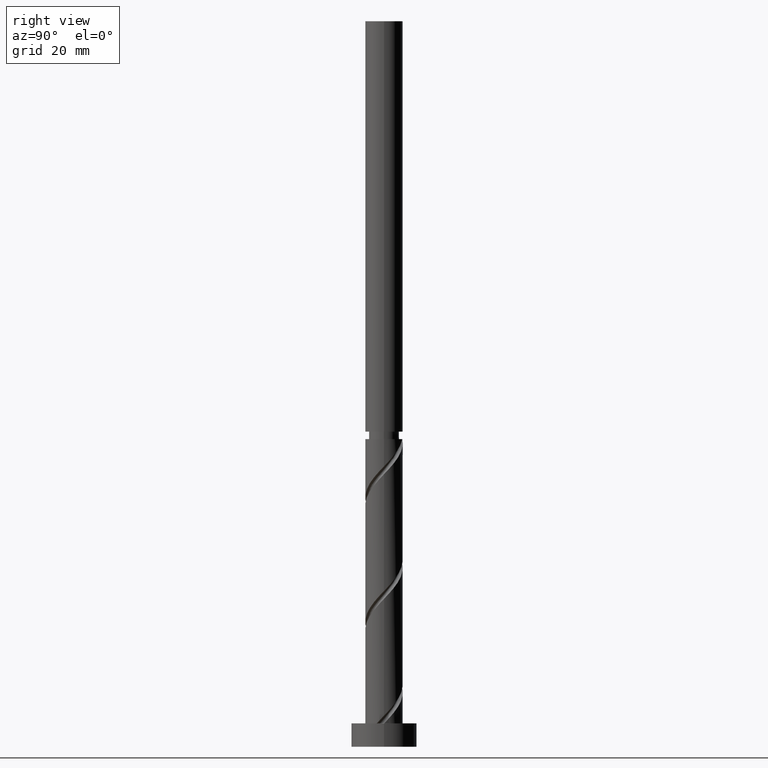
[diagram: clean part render]
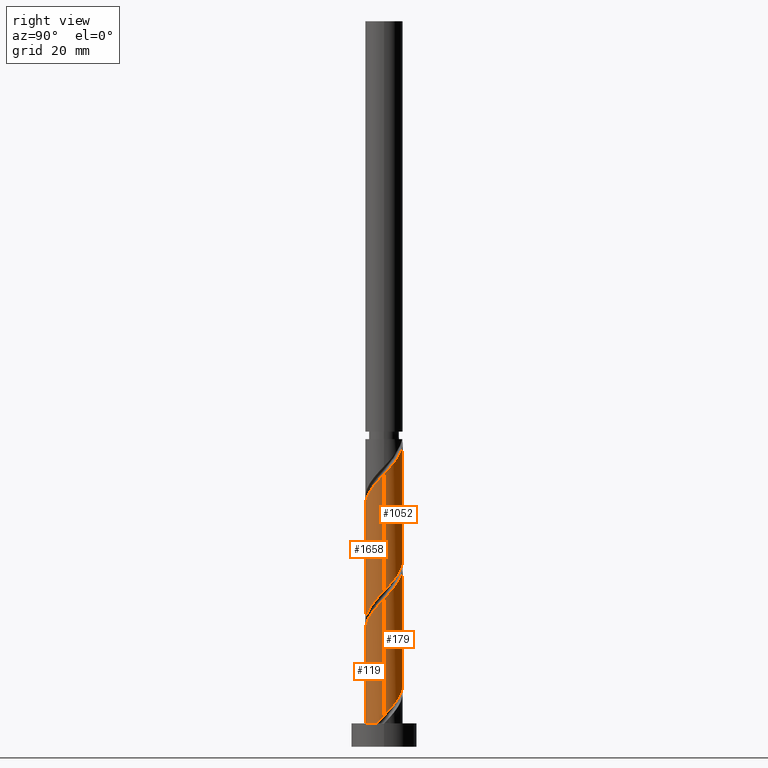
[diagram: same view with one multi-face feature highlighted, each face labeled with its STEP entity id]
A machine part, right view. The highlighted faces form ONE feature: a constant-radius fillet chain: 4 tangent blend faces with common blend radius 4 mm. The faces share edges in the B-rep.
Their STEP definitions:
[1] entity #119 (Cylinder):
#90 =( BOUNDED_CURVE ( )  B_SPLINE_CURVE ( 2, ( #858, #840, #1892, #1317, #1740, #1470, #988 ),
 .UNSPECIFIED., .F., .T. ) 
 B_SPLINE_CURVE_WITH_KNOTS ( ( 3, 2, 2, 3 ),
 ( 0.8045252162417513286, 0.8068181818181817677, 0.8181818181818182323, 0.8202021677089751384 ),
 .UNSPECIFIED. ) 
 CURVE ( )  GEOMETRIC_REPRESENTATION_ITEM ( )  RATIONAL_B_SPLINE_CURVE ( ( 0.9061101570135462469, 0.9072237824201283551, 0.9090909090909058410, 0.8998376744372084124, 0.9090909090909058410, 0.9074457694842660294, 0.9063856111142694072 ) ) 
 REPRESENTATION_ITEM ( '' )  );
#99 = CARTESIAN_POINT ( 'NONE',  ( 2.376675911072817726, -3.268358422650722517, 27.63858067554273390 ) ) ;
#108 = CARTESIAN_POINT ( 'NONE',  ( 4.000000000000007994, -0.4581157095404920221, 31.15165109175539015 ) ) ;
#119 = ADVANCED_FACE ( 'NONE', ( #1918 ), #272, .T. ) ;
#136 = DIRECTION ( 'NONE',  ( -0.000000000000000000, -0.000000000000000000, -1.000000000000000000 ) ) ;
#140 = ORIENTED_EDGE ( 'NONE', *, *, #814, .F. ) ;
#160 = ORIENTED_EDGE ( 'NONE', *, *, #1886, .T. ) ;
#166 = DIRECTION ( 'NONE',  ( 1.000000000000000000, 0.000000000000000000, 0.000000000000000000 ) ) ;
#188 = CIRCLE ( 'NONE', #1745, 4.000000000000000000 ) ;
#250 = VERTEX_POINT ( 'NONE', #431 ) ;
#262 = EDGE_CURVE ( 'NONE', #1035, #501, #1072, .T. ) ;
#272 = CYLINDRICAL_SURFACE ( 'NONE', #1304, 4.000000000000000000 ) ;
#279 = CARTESIAN_POINT ( 'NONE',  ( -4.000000000000000000, 0.000000000000000000, 5.000000000000000000 ) ) ;
#293 = VERTEX_POINT ( 'NONE', #279 ) ;
#383 = CARTESIAN_POINT ( 'NONE',  ( 3.483800894132680348, -1.965485011400591731, 29.45676249372453981 ) ) ;
#414 = CARTESIAN_POINT ( 'NONE',  ( -3.235091246491829331, -2.352484777181775399, 20.97191400887606605 ) ) ;
#431 = CARTESIAN_POINT ( 'NONE',  ( -4.000000000000006217, -1.675163918791613077E-15, 18.30427771139335036 ) ) ;
#461 = EDGE_LOOP ( 'NONE', ( #1787, #1620, #160, #884, #140 ) ) ;
#488 = CARTESIAN_POINT ( 'NONE',  ( -3.766818871216639941, -1.345762085751509352, 19.75979279675485145 ) ) ;
#501 = VERTEX_POINT ( 'NONE', #1701 ) ;
#511 = CARTESIAN_POINT ( 'NONE',  ( -4.000000000000006217, -1.675163918791613077E-15, 18.30427771139335036 ) ) ;
#561 = CARTESIAN_POINT ( 'NONE',  ( 3.896423597087605550, -0.9043689247530186659, 30.66888370584575441 ) ) ;
#594 = VERTEX_POINT ( 'NONE', #1147 ) ;
#685 = CARTESIAN_POINT ( 'NONE',  ( -2.441275768804713309, -3.168623142730451203, 22.18403522099726644 ) ) ;
#697 = CARTESIAN_POINT ( 'NONE',  ( -0.9136687552802140733, -3.936491403624608587, 24.00221703917909366 ) ) ;
#728 = CARTESIAN_POINT ( 'NONE',  ( -0.3406448590276071609, -3.985468740313754754, 24.60827764523968142 ) ) ;
#735 = DIRECTION ( 'NONE',  ( -1.000000000000000000, 0.000000000000000000, 0.000000000000000000 ) ) ;
#737 = LINE ( 'NONE', #1349, #1933 ) ;
#814 = EDGE_CURVE ( 'NONE', #501, #594, #90, .T. ) ;
#828 = CARTESIAN_POINT ( 'NONE',  ( -3.993381233129886354, -0.2300137536889523826, 18.54767158463362975 ) ) ;
#840 = CARTESIAN_POINT ( 'NONE',  ( 4.000000000000001776, -0.1151021060952916869, 6.547755331943575285 ) ) ;
#849 = CARTESIAN_POINT ( 'NONE',  ( 1.359600862145591949, -3.805553922997112259, 26.42645946342152641 ) ) ;
#856 = CARTESIAN_POINT ( 'NONE',  ( 3.766394975944549195, -1.464590062224031763, 30.06282309978515244 ) ) ;
#858 = CARTESIAN_POINT ( 'NONE',  ( 4.000000000000001776, -3.514852865321712256E-15, 6.669853336661794252 ) ) ;
#869 = CARTESIAN_POINT ( 'NONE',  ( 0.7959899496852955725, -3.920000000000006146, 25.82039885736091023 ) ) ;
#884 = ORIENTED_EDGE ( 'NONE', *, *, #1107, .T. ) ;
#935 = CARTESIAN_POINT ( 'NONE',  ( 0.000000000000000000, 0.000000000000000000, 5.000000000000000000 ) ) ;
#976 = CARTESIAN_POINT ( 'NONE',  ( -4.000000000000007105, -0.1151021060952900771, 18.42637571611156844 ) ) ;
#988 = CARTESIAN_POINT ( 'NONE',  ( 3.693800098902596307, -1.534874857878381293, 5.000000000000006217 ) ) ;
#1021 = CARTESIAN_POINT ( 'NONE',  ( -1.985696539029939478, -3.519625607940461087, 22.79009582705787551 ) ) ;
#1035 = VERTEX_POINT ( 'NONE', #1819 ) ;
#1072 = LINE ( 'NONE', #1390, #1143 ) ;
#1107 = EDGE_CURVE ( 'NONE', #293, #594, #188, .T. ) ;
#1124 = DIRECTION ( 'NONE',  ( 0.000000000000000000, 0.000000000000000000, 1.000000000000000000 ) ) ;
#1143 = VECTOR ( 'NONE', #1957, 1000.000000000000000 ) ;
#1147 = CARTESIAN_POINT ( 'NONE',  ( 3.693800098902596307, -1.534874857878381071, 5.000000000000006217 ) ) ;
#1153 = CARTESIAN_POINT ( 'NONE',  ( 2.788941361696815502, -2.867369191613937218, 28.24464128160333232 ) ) ;
#1175 = CARTESIAN_POINT ( 'NONE',  ( 0.2323790372249998071, -4.034446077002902697, 25.21433825130030115 ) ) ;
#1304 = AXIS2_PLACEMENT_3D ( 'NONE', #1775, #1906, #735 ) ;
#1306 = CARTESIAN_POINT ( 'NONE',  ( 4.000000000000006217, 1.420897966832171702E-15, 31.63761104472669672 ) ) ;
#1315 = CARTESIAN_POINT ( 'NONE',  ( 1.868138386609203838, -3.536956172823916944, 27.03252006948211772 ) ) ;
#1317 = CARTESIAN_POINT ( 'NONE',  ( 3.960310248029102365, -0.8041752946599102225, 5.820398857360908451 ) ) ;
#1349 = CARTESIAN_POINT ( 'NONE',  ( -4.000000000000000000, 0.000000000000000000, 155.2000000000000171 ) ) ;
#1390 = CARTESIAN_POINT ( 'NONE',  ( 4.000000000000000000, 4.898587196589412829E-16, 155.2000000000000171 ) ) ;
#1470 = CARTESIAN_POINT ( 'NONE',  ( 3.732706313038952395, -1.441243916640965406, 5.107489677353354907 ) ) ;
#1479 = CARTESIAN_POINT ( 'NONE',  ( 3.201206812320813277, -2.466379960577151476, 28.85070188766393429 ) ) ;
#1596 = CARTESIAN_POINT ( 'NONE',  ( -2.896854998579489138, -2.817620677520443095, 21.57797461493666802 ) ) ;
#1620 = ORIENTED_EDGE ( 'NONE', *, *, #1685, .F. ) ;
#1623 = CARTESIAN_POINT ( 'NONE',  ( -1.449682647155076776, -3.728058505782533505, 23.39615643311848103 ) ) ;
#1685 = EDGE_CURVE ( 'NONE', #250, #1035, #1722, .T. ) ;
#1701 = CARTESIAN_POINT ( 'NONE',  ( 4.000000000000001776, -3.514852865321712256E-15, 6.669853336661794252 ) ) ;
#1722 =( BOUNDED_CURVE ( )  B_SPLINE_CURVE ( 2, ( #511, #976, #828, #1839, #488, #1738, #414, #1596, #685, #1021, #1623, #697, #728, #1175, #869, #849, #1315, #99, #1153, #1479, #383, #856, #561, #108, #1306 ),
 .UNSPECIFIED., .F., .T. ) 
 B_SPLINE_CURVE_WITH_KNOTS ( ( 3, 2, 2, 2, 2, 2, 2, 2, 2, 2, 2, 2, 3 ),
 ( 0.3045252162417513286, 0.3068181818181817677, 0.3181818181818182323, 0.3295454545454545858, 0.3409090909090909394, 0.3522727272727272929, 0.3636363636363636465, 0.3750000000000000000, 0.3863636363636363535, 0.3977272727272727071, 0.4090909090909090606, 0.4204545454545454142, 0.4295252162417513286 ),
 .UNSPECIFIED. ) 
 CURVE ( )  GEOMETRIC_REPRESENTATION_ITEM ( )  RATIONAL_B_SPLINE_CURVE ( ( 0.9061101570135523531, 0.9072237824201345724, 0.9090909090909120582, 0.8998376744372144076, 0.9090909090909120582, 0.8998376744372144076, 0.9090909090909120582, 0.8998376744372144076, 0.9090909090909120582, 0.8998376744372144076, 0.9090909090909120582, 0.8998376744372144076, 0.9090909090909120582, 0.8998376744372144076, 0.9090909090909120582, 0.8998376744372144076, 0.9090909090909120582, 0.8998376744372144076, 0.9090909090909120582, 0.8998376744372144076, 0.9090909090909120582, 0.8998376744372144076, 0.9090909090909120582, 0.9017048011079917824, 0.9061101570135523531 ) ) 
 REPRESENTATION_ITEM ( '' )  );
#1738 = CARTESIAN_POINT ( 'NONE',  ( -3.573327494404171301, -1.887348876843109258, 20.36585340281544987 ) ) ;
#1740 = CARTESIAN_POINT ( 'NONE',  ( 3.766818871216633280, -1.345762085751509129, 5.214338251300299376 ) ) ;
#1745 = AXIS2_PLACEMENT_3D ( 'NONE', #935, #1124, #166 ) ;
#1775 = CARTESIAN_POINT ( 'NONE',  ( 0.000000000000000000, 0.000000000000000000, 155.2000000000000171 ) ) ;
#1787 = ORIENTED_EDGE ( 'NONE', *, *, #262, .F. ) ;
#1819 = CARTESIAN_POINT ( 'NONE',  ( 4.000000000000006217, 1.420897966832171702E-15, 31.63761104472669672 ) ) ;
#1839 = CARTESIAN_POINT ( 'NONE',  ( -3.960310248029109470, -0.8041752946599100005, 19.15373219069423882 ) ) ;
#1886 = EDGE_CURVE ( 'NONE', #250, #293, #737, .T. ) ;
#1892 = CARTESIAN_POINT ( 'NONE',  ( 3.993381233129881913, -0.2300137536889537704, 6.426459463421513085 ) ) ;
#1906 = DIRECTION ( 'NONE',  ( -0.000000000000000000, -0.000000000000000000, -1.000000000000000000 ) ) ;
#1918 = FACE_OUTER_BOUND ( 'NONE', #461, .T. ) ;
#1933 = VECTOR ( 'NONE', #136, 1000.000000000000000 ) ;
#1957 = DIRECTION ( 'NONE',  ( -0.000000000000000000, -0.000000000000000000, -1.000000000000000000 ) ) ;
[2] entity #179 (Cylinder):
#35 = CARTESIAN_POINT ( 'NONE',  ( -2.376675911072817726, 3.268358422650723849, 40.97191400887606250 ) ) ;
#41 = CARTESIAN_POINT ( 'NONE',  ( -1.985696539029936147, 3.519625607940455758, 15.51736855433060747 ) ) ;
#43 = CARTESIAN_POINT ( 'NONE',  ( 0.3406448590276074939, 3.985468740313754754, 37.94161097857302423 ) ) ;
#50 = CARTESIAN_POINT ( 'NONE',  ( 3.483800894132676351, 1.965485011400589066, 8.850701887663939615 ) ) ;
#54 = CARTESIAN_POINT ( 'NONE',  ( 3.573327494404171301, 1.887348876843108147, 33.69918673614878912 ) ) ;
#59 = CARTESIAN_POINT ( 'NONE',  ( -2.441275768804710644, 3.168623142730447650, 16.12342916039120766 ) ) ;
#72 = CARTESIAN_POINT ( 'NONE',  ( 0.000000000000000000, 0.000000000000000000, 155.2000000000000171 ) ) ;
#84 = DIRECTION ( 'NONE',  ( -1.000000000000000000, 0.000000000000000000, 0.000000000000000000 ) ) ;
#178 = CARTESIAN_POINT ( 'NONE',  ( 2.376675911072814618, 3.268358422650717632, 10.66888370584575441 ) ) ;
#179 = ADVANCED_FACE ( 'NONE', ( #399 ), #1192, .T. ) ;
#180 = CARTESIAN_POINT ( 'NONE',  ( 3.766818871216639941, 1.345762085751508685, 33.09312613008818715 ) ) ;
#182 = ORIENTED_EDGE ( 'NONE', *, *, #262, .T. ) ;
#192 = CARTESIAN_POINT ( 'NONE',  ( -0.3406448590276061616, 3.985468740313750313, 13.69918673614878735 ) ) ;
#200 = CARTESIAN_POINT ( 'NONE',  ( 3.766394975944544754, 1.464590062224027767, 8.244641281603328764 ) ) ;
#209 = CARTESIAN_POINT ( 'NONE',  ( 2.788941361696811061, 2.867369191613932333, 10.06282309978515066 ) ) ;
#262 = EDGE_CURVE ( 'NONE', #1035, #501, #1072, .T. ) ;
#321 = CARTESIAN_POINT ( 'NONE',  ( -4.000000000000006217, -1.675163918791613077E-15, 44.97094437806002531 ) ) ;
#336 = CARTESIAN_POINT ( 'NONE',  ( -3.960310248029102365, 0.8041752946599096674, 19.15373219069423527 ) ) ;
#353 = CARTESIAN_POINT ( 'NONE',  ( 1.359600862145592171, 3.805553922997103378, 11.88100491796696900 ) ) ;
#399 = FACE_OUTER_BOUND ( 'NONE', #878, .T. ) ;
#407 = EDGE_CURVE ( 'NONE', #1492, #1365, #1103, .T. ) ;
#424 =( BOUNDED_CURVE ( )  B_SPLINE_CURVE ( 2, ( #1118, #1100, #1549, #336, #649, #1566, #1585, #669, #59, #41, #1246, #1729, #192, #1574, #641, #353, #950, #178, #209, #1856, #50, #200, #1700, #1555, #817 ),
 .UNSPECIFIED., .F., .T. ) 
 B_SPLINE_CURVE_WITH_KNOTS ( ( 3, 2, 2, 2, 2, 2, 2, 2, 2, 2, 2, 2, 3 ),
 ( 0.6795252162417513286, 0.6818181818181817677, 0.6931818181818182323, 0.7045454545454545858, 0.7159090909090909394, 0.7272727272727272929, 0.7386363636363636465, 0.7500000000000000000, 0.7613636363636363535, 0.7727272727272727071, 0.7840909090909090606, 0.7954545454545454142, 0.8045252162417513286 ),
 .UNSPECIFIED. ) 
 CURVE ( )  GEOMETRIC_REPRESENTATION_ITEM ( )  RATIONAL_B_SPLINE_CURVE ( ( 0.9061101570135462469, 0.9072237824201283551, 0.9090909090909058410, 0.8998376744372084124, 0.9090909090909058410, 0.8998376744372084124, 0.9090909090909058410, 0.8998376744372084124, 0.9090909090909058410, 0.8998376744372084124, 0.9090909090909058410, 0.8998376744372084124, 0.9090909090909058410, 0.8998376744372084124, 0.9090909090909058410, 0.8998376744372084124, 0.9090909090909058410, 0.8998376744372084124, 0.9090909090909058410, 0.8998376744372084124, 0.9090909090909058410, 0.8998376744372084124, 0.9090909090909058410, 0.9017048011079857872, 0.9061101570135462469 ) ) 
 REPRESENTATION_ITEM ( '' )  );
#477 = CARTESIAN_POINT ( 'NONE',  ( -0.2323790372249991687, 4.034446077002902697, 38.54767158463365462 ) ) ;
#497 = CARTESIAN_POINT ( 'NONE',  ( -3.896423597087605550, 0.9043689247530188879, 44.00221703917907945 ) ) ;
#501 = VERTEX_POINT ( 'NONE', #1701 ) ;
#514 = CARTESIAN_POINT ( 'NONE',  ( -2.788941361696815502, 2.867369191613937218, 41.57797461493666447 ) ) ;
#530 = VECTOR ( 'NONE', #897, 1000.000000000000000 ) ;
#579 = EDGE_CURVE ( 'NONE', #1035, #1492, #1443, .T. ) ;
#641 = CARTESIAN_POINT ( 'NONE',  ( 0.7959899496852966827, 3.920000000000000817, 12.48706552402757808 ) ) ;
#649 = CARTESIAN_POINT ( 'NONE',  ( -3.766818871216633280, 1.345762085751508463, 18.54767158463363330 ) ) ;
#651 = CARTESIAN_POINT ( 'NONE',  ( -3.201206812320813277, 2.466379960577151476, 42.18403522099727354 ) ) ;
#669 = CARTESIAN_POINT ( 'NONE',  ( -2.896854998579483809, 2.817620677520439987, 16.72948976645181673 ) ) ;
#673 = CARTESIAN_POINT ( 'NONE',  ( 3.235091246491830219, 2.352484777181774511, 34.30524734220937688 ) ) ;
#776 = CARTESIAN_POINT ( 'NONE',  ( -4.000000000000001776, 2.662314085222403279E-15, 20.00318666999513084 ) ) ;
#793 = CARTESIAN_POINT ( 'NONE',  ( 0.9136687552802145174, 3.936491403624608587, 37.33555037251240805 ) ) ;
#803 = CARTESIAN_POINT ( 'NONE',  ( 1.449682647155075443, 3.728058505782533505, 36.72948976645181318 ) ) ;
#817 = CARTESIAN_POINT ( 'NONE',  ( 4.000000000000001776, -3.514852865321712256E-15, 6.669853336661794252 ) ) ;
#821 = CARTESIAN_POINT ( 'NONE',  ( -0.7959899496852951284, 3.920000000000006146, 39.15373219069423527 ) ) ;
#878 = EDGE_LOOP ( 'NONE', ( #1929, #182, #1897, #941 ) ) ;
#897 = DIRECTION ( 'NONE',  ( -0.000000000000000000, -0.000000000000000000, -1.000000000000000000 ) ) ;
#941 = ORIENTED_EDGE ( 'NONE', *, *, #407, .F. ) ;
#945 = CARTESIAN_POINT ( 'NONE',  ( 3.993381233129886354, 0.2300137536889518830, 31.88100491796697611 ) ) ;
#950 = CARTESIAN_POINT ( 'NONE',  ( 1.868138386609203616, 3.536956172823911171, 11.27494431190636526 ) ) ;
#1035 = VERTEX_POINT ( 'NONE', #1819 ) ;
#1072 = LINE ( 'NONE', #1390, #1143 ) ;
#1089 = CARTESIAN_POINT ( 'NONE',  ( -4.000000000000006217, -1.675163918791613077E-15, 44.97094437806002531 ) ) ;
#1090 = CARTESIAN_POINT ( 'NONE',  ( -3.483800894132680348, 1.965485011400591286, 42.79009582705788972 ) ) ;
#1100 = CARTESIAN_POINT ( 'NONE',  ( -4.000000000000001776, 0.1151021060952909236, 19.88108866527691632 ) ) ;
#1103 = LINE ( 'NONE', #1702, #530 ) ;
#1118 = CARTESIAN_POINT ( 'NONE',  ( -4.000000000000001776, 2.662314085222403673E-15, 20.00318666999513084 ) ) ;
#1127 = CARTESIAN_POINT ( 'NONE',  ( -3.766394975944548751, 1.464590062224032430, 43.39615643311849169 ) ) ;
#1143 = VECTOR ( 'NONE', #1957, 1000.000000000000000 ) ;
#1192 = CYLINDRICAL_SURFACE ( 'NONE', #1518, 4.000000000000000000 ) ;
#1246 = CARTESIAN_POINT ( 'NONE',  ( -1.449682647155073445, 3.728058505782529508, 14.91130794827000017 ) ) ;
#1282 = CARTESIAN_POINT ( 'NONE',  ( 1.985696539029938146, 3.519625607940461531, 36.12342916039121832 ) ) ;
#1365 = VERTEX_POINT ( 'NONE', #776 ) ;
#1390 = CARTESIAN_POINT ( 'NONE',  ( 4.000000000000000000, 4.898587196589412829E-16, 155.2000000000000171 ) ) ;
#1414 = CARTESIAN_POINT ( 'NONE',  ( 4.000000000000006217, 1.420897966832171702E-15, 31.63761104472669672 ) ) ;
#1443 =( BOUNDED_CURVE ( )  B_SPLINE_CURVE ( 2, ( #1414, #1840, #945, #1577, #180, #54, #673, #1568, #1832, #1282, #803, #793, #43, #477, #821, #1716, #1866, #35, #514, #651, #1090, #1127, #497, #1691, #321 ),
 .UNSPECIFIED., .F., .T. ) 
 B_SPLINE_CURVE_WITH_KNOTS ( ( 3, 2, 2, 2, 2, 2, 2, 2, 2, 2, 2, 2, 3 ),
 ( 0.4295252162417513286, 0.4318181818181817677, 0.4431818181818182323, 0.4545454545454545858, 0.4659090909090909394, 0.4772727272727272929, 0.4886363636363636465, 0.5000000000000000000, 0.5113636363636363535, 0.5227272727272727071, 0.5340909090909091717, 0.5454545454545454142, 0.5545252162417515507 ),
 .UNSPECIFIED. ) 
 CURVE ( )  GEOMETRIC_REPRESENTATION_ITEM ( )  RATIONAL_B_SPLINE_CURVE ( ( 0.9061101570135523531, 0.9072237824201345724, 0.9090909090909120582, 0.8998376744372144076, 0.9090909090909120582, 0.8998376744372144076, 0.9090909090909120582, 0.8998376744372144076, 0.9090909090909120582, 0.8998376744372144076, 0.9090909090909120582, 0.8998376744372144076, 0.9090909090909120582, 0.8998376744372144076, 0.9090909090909120582, 0.8998376744372144076, 0.9090909090909120582, 0.8998376744372144076, 0.9090909090909120582, 0.8998376744372144076, 0.9090909090909120582, 0.8998376744372144076, 0.9090909090909120582, 0.9017048011079917824, 0.9061101570135525751 ) ) 
 REPRESENTATION_ITEM ( '' )  );
#1453 = DIRECTION ( 'NONE',  ( -0.000000000000000000, -0.000000000000000000, -1.000000000000000000 ) ) ;
#1492 = VERTEX_POINT ( 'NONE', #1089 ) ;
#1518 = AXIS2_PLACEMENT_3D ( 'NONE', #72, #1453, #84 ) ;
#1549 = CARTESIAN_POINT ( 'NONE',  ( -3.993381233129881913, 0.2300137536889531598, 19.75979279675485500 ) ) ;
#1555 = CARTESIAN_POINT ( 'NONE',  ( 4.000000000000002665, 0.4581157095404892465, 7.155813289633101704 ) ) ;
#1566 = CARTESIAN_POINT ( 'NONE',  ( -3.573327494404165527, 1.887348876843107259, 17.94161097857302423 ) ) ;
#1568 = CARTESIAN_POINT ( 'NONE',  ( 2.896854998579490914, 2.817620677520442207, 34.91130794827000017 ) ) ;
#1569 = EDGE_CURVE ( 'NONE', #1365, #501, #424, .T. ) ;
#1574 = CARTESIAN_POINT ( 'NONE',  ( 0.2323790372250001401, 4.034446077002896480, 13.09312613008818005 ) ) ;
#1577 = CARTESIAN_POINT ( 'NONE',  ( 3.960310248029109470, 0.8041752946599093343, 32.48706552402757097 ) ) ;
#1585 = CARTESIAN_POINT ( 'NONE',  ( -3.235091246491824890, 2.352484777181773623, 17.33555037251242226 ) ) ;
#1691 = CARTESIAN_POINT ( 'NONE',  ( -4.000000000000008882, 0.4581157095404854718, 44.48498442508873296 ) ) ;
#1700 = CARTESIAN_POINT ( 'NONE',  ( 3.896423597087600665, 0.9043689247530154462, 7.638580675542724130 ) ) ;
#1701 = CARTESIAN_POINT ( 'NONE',  ( 4.000000000000001776, -3.514852865321712256E-15, 6.669853336661794252 ) ) ;
#1702 = CARTESIAN_POINT ( 'NONE',  ( -4.000000000000000000, 0.000000000000000000, 155.2000000000000171 ) ) ;
#1716 = CARTESIAN_POINT ( 'NONE',  ( -1.359600862145592615, 3.805553922997110927, 39.75979279675484435 ) ) ;
#1729 = CARTESIAN_POINT ( 'NONE',  ( -0.9136687552802122969, 3.936491403624602814, 14.30524734220939642 ) ) ;
#1819 = CARTESIAN_POINT ( 'NONE',  ( 4.000000000000006217, 1.420897966832171702E-15, 31.63761104472669672 ) ) ;
#1832 = CARTESIAN_POINT ( 'NONE',  ( 2.441275768804712865, 3.168623142730452091, 35.51736855433059503 ) ) ;
#1840 = CARTESIAN_POINT ( 'NONE',  ( 4.000000000000007105, 0.1151021060952897024, 31.75970904944491124 ) ) ;
#1856 = CARTESIAN_POINT ( 'NONE',  ( 3.201206812320807948, 2.466379960577147923, 9.456762493724543361 ) ) ;
#1866 = CARTESIAN_POINT ( 'NONE',  ( -1.868138386609204948, 3.536956172823916056, 40.36585340281545342 ) ) ;
#1897 = ORIENTED_EDGE ( 'NONE', *, *, #1569, .F. ) ;
#1929 = ORIENTED_EDGE ( 'NONE', *, *, #579, .F. ) ;
#1957 = DIRECTION ( 'NONE',  ( -0.000000000000000000, -0.000000000000000000, -1.000000000000000000 ) ) ;
[3] entity #1658 (Cylinder):
#33 = DIRECTION ( 'NONE',  ( -0.000000000000000000, -0.000000000000000000, -1.000000000000000000 ) ) ;
#66 = CARTESIAN_POINT ( 'NONE',  ( -2.376675911072814174, -3.268358422650717632, 24.00221703917909011 ) ) ;
#79 =( BOUNDED_CURVE ( )  B_SPLINE_CURVE ( 2, ( #1779, #221, #253, #1336, #1921, #880, #1768, #392, #1891, #551, #1296, #1635, #1912, #575, #997, #1758, #539, #66, #527, #234, #1185, #1880, #1010, #1146, #371 ),
 .UNSPECIFIED., .F., .T. ) 
 B_SPLINE_CURVE_WITH_KNOTS ( ( 3, 2, 2, 2, 2, 2, 2, 2, 2, 2, 2, 2, 3 ),
 ( 0.5545252162417513286, 0.5568181818181817677, 0.5681818181818182323, 0.5795454545454545858, 0.5909090909090909394, 0.6022727272727272929, 0.6136363636363636465, 0.6250000000000000000, 0.6363636363636363535, 0.6477272727272727071, 0.6590909090909090606, 0.6704545454545454142, 0.6795252162417513286 ),
 .UNSPECIFIED. ) 
 CURVE ( )  GEOMETRIC_REPRESENTATION_ITEM ( )  RATIONAL_B_SPLINE_CURVE ( ( 0.9061101570135462469, 0.9072237824201283551, 0.9090909090909058410, 0.8998376744372084124, 0.9090909090909058410, 0.8998376744372084124, 0.9090909090909058410, 0.8998376744372084124, 0.9090909090909058410, 0.8998376744372084124, 0.9090909090909058410, 0.8998376744372084124, 0.9090909090909058410, 0.8998376744372084124, 0.9090909090909058410, 0.8998376744372084124, 0.9090909090909058410, 0.8998376744372084124, 0.9090909090909058410, 0.8998376744372084124, 0.9090909090909058410, 0.8998376744372084124, 0.9090909090909058410, 0.9017048011079857872, 0.9061101570135462469 ) ) 
 REPRESENTATION_ITEM ( '' )  );
#116 = CARTESIAN_POINT ( 'NONE',  ( -4.000000000000006217, -1.675163918791613077E-15, 44.97094437806002531 ) ) ;
#130 = EDGE_LOOP ( 'NONE', ( #1095, #148, #1368, #1816 ) ) ;
#148 = ORIENTED_EDGE ( 'NONE', *, *, #1862, .F. ) ;
#156 = CARTESIAN_POINT ( 'NONE',  ( -3.766818871216639941, -1.345762085751509352, 46.42645946342151575 ) ) ;
#212 = CARTESIAN_POINT ( 'NONE',  ( 4.000000000000006217, 1.420897966832171702E-15, 58.30427771139336812 ) ) ;
#221 = CARTESIAN_POINT ( 'NONE',  ( 4.000000000000001776, -0.1151021060952916869, 33.21442199861024136 ) ) ;
#234 = CARTESIAN_POINT ( 'NONE',  ( -3.201206812320809281, -2.466379960577146591, 22.79009582705787551 ) ) ;
#253 = CARTESIAN_POINT ( 'NONE',  ( 3.993381233129881913, -0.2300137536889537704, 33.09312613008818715 ) ) ;
#275 = CARTESIAN_POINT ( 'NONE',  ( 3.896423597087605550, -0.9043689247530186659, 57.33555037251242226 ) ) ;
#302 = CARTESIAN_POINT ( 'NONE',  ( -3.235091246491829331, -2.352484777181775399, 47.63858067554272679 ) ) ;
#371 = CARTESIAN_POINT ( 'NONE',  ( -4.000000000000001776, 2.662314085222403673E-15, 20.00318666999513084 ) ) ;
#379 = VERTEX_POINT ( 'NONE', #601 ) ;
#392 = CARTESIAN_POINT ( 'NONE',  ( 2.896854998579485141, -2.817620677520438655, 30.06282309978515244 ) ) ;
#407 = EDGE_CURVE ( 'NONE', #1492, #1365, #1103, .T. ) ;
#437 = CARTESIAN_POINT ( 'NONE',  ( -1.449682647155076776, -3.728058505782533505, 50.06282309978513467 ) ) ;
#452 = CARTESIAN_POINT ( 'NONE',  ( 4.000000000000007105, -0.4581157095404907453, 57.81831775842205445 ) ) ;
#463 = CARTESIAN_POINT ( 'NONE',  ( -4.000000000000006217, -0.1151021060952967662, 45.09304238277824339 ) ) ;
#527 = CARTESIAN_POINT ( 'NONE',  ( -2.788941361696812837, -2.867369191613931889, 23.39615643311849169 ) ) ;
#530 = VECTOR ( 'NONE', #897, 1000.000000000000000 ) ;
#539 = CARTESIAN_POINT ( 'NONE',  ( -1.868138386609203172, -3.536956172823911171, 24.60827764523969563 ) ) ;
#551 = CARTESIAN_POINT ( 'NONE',  ( 1.985696539029935925, -3.519625607940455758, 28.85070188766393784 ) ) ;
#575 = CARTESIAN_POINT ( 'NONE',  ( -0.2323790372250011671, -4.034446077002897368, 26.42645946342151930 ) ) ;
#601 = CARTESIAN_POINT ( 'NONE',  ( 4.000000000000001776, -3.514852865321712256E-15, 33.33652000332846654 ) ) ;
#627 = CARTESIAN_POINT ( 'NONE',  ( 1.868138386609203838, -3.536956172823916944, 53.69918673614876781 ) ) ;
#751 = CARTESIAN_POINT ( 'NONE',  ( -2.441275768804713309, -3.168623142730451203, 48.85070188766393784 ) ) ;
#764 = CARTESIAN_POINT ( 'NONE',  ( -1.985696539029939478, -3.519625607940461087, 49.45676249372455402 ) ) ;
#773 = CARTESIAN_POINT ( 'NONE',  ( 0.2323790372249998071, -4.034446077002902697, 51.88100491796699032 ) ) ;
#776 = CARTESIAN_POINT ( 'NONE',  ( -4.000000000000001776, 2.662314085222403279E-15, 20.00318666999513084 ) ) ;
#792 = CARTESIAN_POINT ( 'NONE',  ( 0.000000000000000000, 0.000000000000000000, 155.2000000000000171 ) ) ;
#796 = VERTEX_POINT ( 'NONE', #212 ) ;
#861 = AXIS2_PLACEMENT_3D ( 'NONE', #792, #33, #1279 ) ;
#880 = CARTESIAN_POINT ( 'NONE',  ( 3.573327494404165527, -1.887348876843107037, 31.27494431190635993 ) ) ;
#897 = DIRECTION ( 'NONE',  ( -0.000000000000000000, -0.000000000000000000, -1.000000000000000000 ) ) ;
#904 = CARTESIAN_POINT ( 'NONE',  ( -2.896854998579489138, -2.817620677520443095, 48.24464128160334297 ) ) ;
#924 = CARTESIAN_POINT ( 'NONE',  ( -0.9136687552802140733, -3.936491403624608587, 50.66888370584575796 ) ) ;
#997 = CARTESIAN_POINT ( 'NONE',  ( -0.7959899496852962386, -3.920000000000000817, 25.82039885736091378 ) ) ;
#1010 = CARTESIAN_POINT ( 'NONE',  ( -3.896423597087600665, -0.9043689247530166675, 20.97191400887606250 ) ) ;
#1053 = CARTESIAN_POINT ( 'NONE',  ( -0.3406448590276071609, -3.985468740313754754, 51.27494431190635993 ) ) ;
#1089 = CARTESIAN_POINT ( 'NONE',  ( -4.000000000000006217, -1.675163918791613077E-15, 44.97094437806002531 ) ) ;
#1095 = ORIENTED_EDGE ( 'NONE', *, *, #1376, .F. ) ;
#1103 = LINE ( 'NONE', #1702, #530 ) ;
#1135 = FACE_OUTER_BOUND ( 'NONE', #130, .T. ) ;
#1146 = CARTESIAN_POINT ( 'NONE',  ( -4.000000000000002665, -0.4581157095404906343, 20.48914662296643741 ) ) ;
#1154 = VECTOR ( 'NONE', #1820, 1000.000000000000000 ) ;
#1185 = CARTESIAN_POINT ( 'NONE',  ( -3.483800894132676351, -1.965485011400588178, 22.18403522099726644 ) ) ;
#1227 = CARTESIAN_POINT ( 'NONE',  ( -3.573327494404171301, -1.887348876843109258, 47.03252006948213904 ) ) ;
#1235 = CARTESIAN_POINT ( 'NONE',  ( 2.376675911072817726, -3.268358422650722517, 54.30524734220938399 ) ) ;
#1279 = DIRECTION ( 'NONE',  ( -1.000000000000000000, 0.000000000000000000, 0.000000000000000000 ) ) ;
#1296 = CARTESIAN_POINT ( 'NONE',  ( 1.449682647155073445, -3.728058505782529508, 28.24464128160333942 ) ) ;
#1336 = CARTESIAN_POINT ( 'NONE',  ( 3.960310248029102365, -0.8041752946599102225, 32.48706552402757097 ) ) ;
#1362 = CARTESIAN_POINT ( 'NONE',  ( -3.960310248029109470, -0.8041752946599100005, 45.82039885736089246 ) ) ;
#1365 = VERTEX_POINT ( 'NONE', #776 ) ;
#1368 = ORIENTED_EDGE ( 'NONE', *, *, #407, .T. ) ;
#1369 = CARTESIAN_POINT ( 'NONE',  ( 3.201206812320813277, -2.466379960577151476, 55.51736855433062345 ) ) ;
#1376 = EDGE_CURVE ( 'NONE', #796, #379, #1389, .T. ) ;
#1379 = CARTESIAN_POINT ( 'NONE',  ( 3.483800894132680348, -1.965485011400591731, 56.12342916039119700 ) ) ;
#1387 = CARTESIAN_POINT ( 'NONE',  ( 1.359600862145591949, -3.805553922997112259, 53.09312613008818715 ) ) ;
#1389 = LINE ( 'NONE', #1519, #1154 ) ;
#1424 = CYLINDRICAL_SURFACE ( 'NONE', #861, 4.000000000000000000 ) ;
#1492 = VERTEX_POINT ( 'NONE', #1089 ) ;
#1509 = CARTESIAN_POINT ( 'NONE',  ( 2.788941361696815502, -2.867369191613937218, 54.91130794826999306 ) ) ;
#1519 = CARTESIAN_POINT ( 'NONE',  ( 4.000000000000000000, 4.898587196589412829E-16, 155.2000000000000171 ) ) ;
#1520 =( BOUNDED_CURVE ( )  B_SPLINE_CURVE ( 2, ( #116, #463, #1677, #1362, #156, #1227, #302, #904, #751, #764, #437, #924, #1053, #773, #1942, #1387, #627, #1235, #1509, #1369, #1379, #1828, #275, #452, #1961 ),
 .UNSPECIFIED., .F., .T. ) 
 B_SPLINE_CURVE_WITH_KNOTS ( ( 3, 2, 2, 2, 2, 2, 2, 2, 2, 2, 2, 2, 3 ),
 ( 0.5545252162417515507, 0.5568181818181818787, 0.5681818181818181213, 0.5795454545454545858, 0.5909090909090908283, 0.6022727272727272929, 0.6136363636363636465, 0.6250000000000000000, 0.6363636363636363535, 0.6477272727272727071, 0.6590909090909091717, 0.6704545454545454142, 0.6795252162417514397 ),
 .UNSPECIFIED. ) 
 CURVE ( )  GEOMETRIC_REPRESENTATION_ITEM ( )  RATIONAL_B_SPLINE_CURVE ( ( 0.9061101570135525751, 0.9072237824201346834, 0.9090909090909120582, 0.8998376744372144076, 0.9090909090909120582, 0.8998376744372144076, 0.9090909090909120582, 0.8998376744372144076, 0.9090909090909120582, 0.8998376744372144076, 0.9090909090909120582, 0.8998376744372144076, 0.9090909090909120582, 0.8998376744372144076, 0.9090909090909120582, 0.8998376744372144076, 0.9090909090909120582, 0.8998376744372144076, 0.9090909090909120582, 0.8998376744372144076, 0.9090909090909120582, 0.8998376744372144076, 0.9090909090909120582, 0.9017048011079918934, 0.9061101570135523531 ) ) 
 REPRESENTATION_ITEM ( '' )  );
#1635 = CARTESIAN_POINT ( 'NONE',  ( 0.9136687552802127410, -3.936491403624601926, 27.63858067554272679 ) ) ;
#1658 = ADVANCED_FACE ( 'NONE', ( #1135 ), #1424, .T. ) ;
#1677 = CARTESIAN_POINT ( 'NONE',  ( -3.993381233129886354, -0.2300137536889523826, 45.21433825130028339 ) ) ;
#1702 = CARTESIAN_POINT ( 'NONE',  ( -4.000000000000000000, 0.000000000000000000, 155.2000000000000171 ) ) ;
#1758 = CARTESIAN_POINT ( 'NONE',  ( -1.359600862145591282, -3.805553922997103822, 25.21433825130030471 ) ) ;
#1768 = CARTESIAN_POINT ( 'NONE',  ( 3.235091246491825334, -2.352484777181773179, 30.66888370584576506 ) ) ;
#1779 = CARTESIAN_POINT ( 'NONE',  ( 4.000000000000001776, -3.514852865321712256E-15, 33.33652000332846654 ) ) ;
#1784 = EDGE_CURVE ( 'NONE', #379, #1365, #79, .T. ) ;
#1816 = ORIENTED_EDGE ( 'NONE', *, *, #1784, .F. ) ;
#1820 = DIRECTION ( 'NONE',  ( -0.000000000000000000, -0.000000000000000000, -1.000000000000000000 ) ) ;
#1828 = CARTESIAN_POINT ( 'NONE',  ( 3.766394975944549195, -1.464590062224031763, 56.72948976645181318 ) ) ;
#1862 = EDGE_CURVE ( 'NONE', #1492, #796, #1520, .T. ) ;
#1880 = CARTESIAN_POINT ( 'NONE',  ( -3.766394975944543866, -1.464590062224029543, 21.57797461493666447 ) ) ;
#1891 = CARTESIAN_POINT ( 'NONE',  ( 2.441275768804709312, -3.168623142730448095, 29.45676249372455047 ) ) ;
#1912 = CARTESIAN_POINT ( 'NONE',  ( 0.3406448590276050514, -3.985468740313750313, 27.03252006948211772 ) ) ;
#1921 = CARTESIAN_POINT ( 'NONE',  ( 3.766818871216633280, -1.345762085751509129, 31.88100491796697611 ) ) ;
#1942 = CARTESIAN_POINT ( 'NONE',  ( 0.7959899496852955725, -3.920000000000006146, 52.48706552402758518 ) ) ;
#1961 = CARTESIAN_POINT ( 'NONE',  ( 4.000000000000006217, 1.420897966832171702E-15, 58.30427771139336812 ) ) ;
[4] entity #1052 (Cylinder):
#19 = ORIENTED_EDGE ( 'NONE', *, *, #513, .F. ) ;
#58 = EDGE_CURVE ( 'NONE', #1955, #750, #114, .T. ) ;
#62 = CARTESIAN_POINT ( 'NONE',  ( 4.000000000000001776, -3.514852865321712256E-15, 33.33652000332846654 ) ) ;
#114 = LINE ( 'NONE', #1643, #700 ) ;
#168 = CARTESIAN_POINT ( 'NONE',  ( 4.000000000000006217, 1.420897966832171702E-15, 58.30427771139336812 ) ) ;
#177 = DIRECTION ( 'NONE',  ( -0.000000000000000000, -0.000000000000000000, -1.000000000000000000 ) ) ;
#187 = CARTESIAN_POINT ( 'NONE',  ( 0.9136687552802145174, 3.936491403624608587, 64.00221703917910077 ) ) ;
#194 = CARTESIAN_POINT ( 'NONE',  ( 3.766818871216639941, 1.345762085751508685, 59.75979279675485145 ) ) ;
#203 = CARTESIAN_POINT ( 'NONE',  ( -0.2323790372249991687, 4.034446077002902697, 65.21433825130029049 ) ) ;
#205 = CARTESIAN_POINT ( 'NONE',  ( 3.896423597087600665, 0.9043689247530154462, 34.30524734220939109 ) ) ;
#212 = CARTESIAN_POINT ( 'NONE',  ( 4.000000000000006217, 1.420897966832171702E-15, 58.30427771139336812 ) ) ;
#329 = FACE_OUTER_BOUND ( 'NONE', #655, .T. ) ;
#331 = DIRECTION ( 'NONE',  ( -1.000000000000000000, 0.000000000000000000, 0.000000000000000000 ) ) ;
#347 = CARTESIAN_POINT ( 'NONE',  ( 2.441275768804712865, 3.168623142730452091, 62.18403522099725222 ) ) ;
#349 = CARTESIAN_POINT ( 'NONE',  ( 2.788941361696811061, 2.867369191613932333, 36.72948976645182029 ) ) ;
#357 = CARTESIAN_POINT ( 'NONE',  ( 3.993381233129886354, 0.2300137536889518830, 58.54767158463364041 ) ) ;
#358 = CARTESIAN_POINT ( 'NONE',  ( 1.359600862145592171, 3.805553922997103378, 38.54767158463365462 ) ) ;
#379 = VERTEX_POINT ( 'NONE', #601 ) ;
#382 = EDGE_CURVE ( 'NONE', #750, #379, #1055, .T. ) ;
#388 = ORIENTED_EDGE ( 'NONE', *, *, #382, .F. ) ;
#469 = CARTESIAN_POINT ( 'NONE',  ( -1.985696539029936147, 3.519625607940455758, 42.18403522099728775 ) ) ;
#479 = CARTESIAN_POINT ( 'NONE',  ( -2.896854998579483809, 2.817620677520439987, 43.39615643311848459 ) ) ;
#483 = ORIENTED_EDGE ( 'NONE', *, *, #535, .T. ) ;
#489 = ORIENTED_EDGE ( 'NONE', *, *, #1376, .T. ) ;
#490 = CARTESIAN_POINT ( 'NONE',  ( 1.449682647155075443, 3.728058505782533505, 63.39615643311846327 ) ) ;
#513 = EDGE_CURVE ( 'NONE', #796, #1208, #916, .T. ) ;
#524 = ORIENTED_EDGE ( 'NONE', *, *, #58, .F. ) ;
#535 = EDGE_CURVE ( 'NONE', #1955, #1208, #741, .T. ) ;
#601 = CARTESIAN_POINT ( 'NONE',  ( 4.000000000000001776, -3.514852865321712256E-15, 33.33652000332846654 ) ) ;
#615 = CARTESIAN_POINT ( 'NONE',  ( -3.573327494404165527, 1.887348876843107259, 44.60827764523969563 ) ) ;
#623 = CARTESIAN_POINT ( 'NONE',  ( -3.235091246491824890, 2.352484777181773623, 44.00221703917907945 ) ) ;
#630 = CARTESIAN_POINT ( 'NONE',  ( 2.896854998579490914, 2.817620677520442207, 61.57797461493667868 ) ) ;
#632 = CARTESIAN_POINT ( 'NONE',  ( -4.000000000000001776, 2.662314085222403279E-15, 46.66985333666180935 ) ) ;
#646 = AXIS2_PLACEMENT_3D ( 'NONE', #1849, #661, #331 ) ;
#653 = CARTESIAN_POINT ( 'NONE',  ( 3.201206812320807948, 2.466379960577147923, 36.12342916039121832 ) ) ;
#655 = EDGE_LOOP ( 'NONE', ( #19, #489, #388, #524, #483 ) ) ;
#661 = DIRECTION ( 'NONE',  ( -0.000000000000000000, -0.000000000000000000, -1.000000000000000000 ) ) ;
#700 = VECTOR ( 'NONE', #1038, 1000.000000000000000 ) ;
#741 = CIRCLE ( 'NONE', #646, 4.000000000000003553 ) ;
#742 = AXIS2_PLACEMENT_3D ( 'NONE', #1548, #177, #810 ) ;
#750 = VERTEX_POINT ( 'NONE', #1447 ) ;
#796 = VERTEX_POINT ( 'NONE', #212 ) ;
#810 = DIRECTION ( 'NONE',  ( -1.000000000000000000, 0.000000000000000000, 0.000000000000000000 ) ) ;
#823 = CARTESIAN_POINT ( 'NONE',  ( 4.000000000000002665, 0.4581157095404892465, 33.82247995629976600 ) ) ;
#886 = CARTESIAN_POINT ( 'NONE',  ( 0.7959899496852966827, 3.920000000000000817, 39.15373219069424948 ) ) ;
#910 = CARTESIAN_POINT ( 'NONE',  ( -3.766818871216633280, 1.345762085751508463, 45.21433825130030471 ) ) ;
#916 =( BOUNDED_CURVE ( )  B_SPLINE_CURVE ( 2, ( #168, #1102, #357, #1398, #194, #1420, #960, #630, #347, #1558, #490, #187, #1237, #203, #1273 ),
 .UNSPECIFIED., .F., .T. ) 
 B_SPLINE_CURVE_WITH_KNOTS ( ( 3, 2, 2, 2, 2, 2, 2, 3 ),
 ( 0.6795252162417514397, 0.6818181818181818787, 0.6931818181818181213, 0.7045454545454545858, 0.7159090909090908283, 0.7272727272727272929, 0.7386363636363636465, 0.7500000000000000000 ),
 .UNSPECIFIED. ) 
 CURVE ( )  GEOMETRIC_REPRESENTATION_ITEM ( )  RATIONAL_B_SPLINE_CURVE ( ( 0.9061101570135523531, 0.9072237824201345724, 0.9090909090909120582, 0.8998376744372144076, 0.9090909090909120582, 0.8998376744372144076, 0.9090909090909120582, 0.8998376744372144076, 0.9090909090909120582, 0.8998376744372144076, 0.9090909090909120582, 0.8998376744372144076, 0.9090909090909120582, 0.8998376744372144076, 0.9090909090909120582 ) ) 
 REPRESENTATION_ITEM ( '' )  );
#960 = CARTESIAN_POINT ( 'NONE',  ( 3.235091246491830219, 2.352484777181774511, 60.97191400887605539 ) ) ;
#962 = CARTESIAN_POINT ( 'NONE',  ( 3.766394975944544754, 1.464590062224027767, 34.91130794826998596 ) ) ;
#1038 = DIRECTION ( 'NONE',  ( -0.000000000000000000, -0.000000000000000000, -1.000000000000000000 ) ) ;
#1052 = ADVANCED_FACE ( 'NONE', ( #329 ), #1525, .T. ) ;
#1055 =( BOUNDED_CURVE ( )  B_SPLINE_CURVE ( 2, ( #632, #1803, #1834, #1060, #910, #615, #623, #479, #1824, #469, #1084, #1684, #1092, #1694, #886, #358, #1559, #1120, #349, #653, #1578, #962, #205, #823, #62 ),
 .UNSPECIFIED., .F., .T. ) 
 B_SPLINE_CURVE_WITH_KNOTS ( ( 3, 2, 2, 2, 2, 2, 2, 2, 2, 2, 2, 2, 3 ),
 ( 0.4295252162417513286, 0.4318181818181818232, 0.4431818181818181768, 0.4545454545454545303, 0.4659090909090908839, 0.4772727272727272929, 0.4886363636363636465, 0.5000000000000000000, 0.5113636363636363535, 0.5227272727272727071, 0.5340909090909090606, 0.5454545454545454142, 0.5545252162417513286 ),
 .UNSPECIFIED. ) 
 CURVE ( )  GEOMETRIC_REPRESENTATION_ITEM ( )  RATIONAL_B_SPLINE_CURVE ( ( 0.9061101570135461358, 0.9072237824201283551, 0.9090909090909058410, 0.8998376744372084124, 0.9090909090909058410, 0.8998376744372084124, 0.9090909090909058410, 0.8998376744372084124, 0.9090909090909058410, 0.8998376744372084124, 0.9090909090909058410, 0.8998376744372084124, 0.9090909090909058410, 0.8998376744372084124, 0.9090909090909058410, 0.8998376744372084124, 0.9090909090909058410, 0.8998376744372084124, 0.9090909090909058410, 0.8998376744372084124, 0.9090909090909058410, 0.8998376744372084124, 0.9090909090909058410, 0.9017048011079857872, 0.9061101570135462469 ) ) 
 REPRESENTATION_ITEM ( '' )  );
#1060 = CARTESIAN_POINT ( 'NONE',  ( -3.960310248029102365, 0.8041752946599096674, 45.82039885736090667 ) ) ;
#1084 = CARTESIAN_POINT ( 'NONE',  ( -1.449682647155073445, 3.728058505782529508, 41.57797461493666447 ) ) ;
#1092 = CARTESIAN_POINT ( 'NONE',  ( -0.3406448590276061616, 3.985468740313750313, 40.36585340281545342 ) ) ;
#1102 = CARTESIAN_POINT ( 'NONE',  ( 4.000000000000006217, 0.1151021060952908542, 58.42637571611157910 ) ) ;
#1109 = CARTESIAN_POINT ( 'NONE',  ( -0.7959899496852951284, 3.920000000000005258, 65.82039885736091378 ) ) ;
#1120 = CARTESIAN_POINT ( 'NONE',  ( 2.376675911072814618, 3.268358422650717632, 37.33555037251242226 ) ) ;
#1154 = VECTOR ( 'NONE', #1820, 1000.000000000000000 ) ;
#1208 = VERTEX_POINT ( 'NONE', #1109 ) ;
#1237 = CARTESIAN_POINT ( 'NONE',  ( 0.3406448590276074939, 3.985468740313754754, 64.60827764523968142 ) ) ;
#1273 = CARTESIAN_POINT ( 'NONE',  ( -0.7959899496852951284, 3.920000000000005258, 65.82039885736091378 ) ) ;
#1331 = CARTESIAN_POINT ( 'NONE',  ( -4.000000000000003553, 0.000000000000000000, 65.82039885736091378 ) ) ;
#1376 = EDGE_CURVE ( 'NONE', #796, #379, #1389, .T. ) ;
#1389 = LINE ( 'NONE', #1519, #1154 ) ;
#1398 = CARTESIAN_POINT ( 'NONE',  ( 3.960310248029109470, 0.8041752946599093343, 59.15373219069423527 ) ) ;
#1420 = CARTESIAN_POINT ( 'NONE',  ( 3.573327494404171301, 1.887348876843108147, 60.36585340281546763 ) ) ;
#1447 = CARTESIAN_POINT ( 'NONE',  ( -4.000000000000001776, 2.662314085222403279E-15, 46.66985333666180935 ) ) ;
#1519 = CARTESIAN_POINT ( 'NONE',  ( 4.000000000000000000, 4.898587196589412829E-16, 155.2000000000000171 ) ) ;
#1525 = CYLINDRICAL_SURFACE ( 'NONE', #742, 4.000000000000000000 ) ;
#1548 = CARTESIAN_POINT ( 'NONE',  ( 0.000000000000000000, 0.000000000000000000, 155.2000000000000171 ) ) ;
#1558 = CARTESIAN_POINT ( 'NONE',  ( 1.985696539029938146, 3.519625607940461531, 62.79009582705788262 ) ) ;
#1559 = CARTESIAN_POINT ( 'NONE',  ( 1.868138386609203616, 3.536956172823911171, 37.94161097857303133 ) ) ;
#1578 = CARTESIAN_POINT ( 'NONE',  ( 3.483800894132676351, 1.965485011400589066, 35.51736855433060924 ) ) ;
#1643 = CARTESIAN_POINT ( 'NONE',  ( -4.000000000000000000, 0.000000000000000000, 155.2000000000000171 ) ) ;
#1684 = CARTESIAN_POINT ( 'NONE',  ( -0.9136687552802122969, 3.936491403624602814, 40.97191400887606250 ) ) ;
#1694 = CARTESIAN_POINT ( 'NONE',  ( 0.2323790372250001401, 4.034446077002896480, 39.75979279675484435 ) ) ;
#1803 = CARTESIAN_POINT ( 'NONE',  ( -4.000000000000001776, 0.1151021060952881481, 46.54775533194357706 ) ) ;
#1820 = DIRECTION ( 'NONE',  ( -0.000000000000000000, -0.000000000000000000, -1.000000000000000000 ) ) ;
#1824 = CARTESIAN_POINT ( 'NONE',  ( -2.441275768804710644, 3.168623142730447650, 42.79009582705788972 ) ) ;
#1834 = CARTESIAN_POINT ( 'NONE',  ( -3.993381233129881913, 0.2300137536889531598, 46.42645946342151575 ) ) ;
#1849 = CARTESIAN_POINT ( 'NONE',  ( 0.000000000000000000, 0.000000000000000000, 65.82039885736091378 ) ) ;
#1955 = VERTEX_POINT ( 'NONE', #1331 ) ;